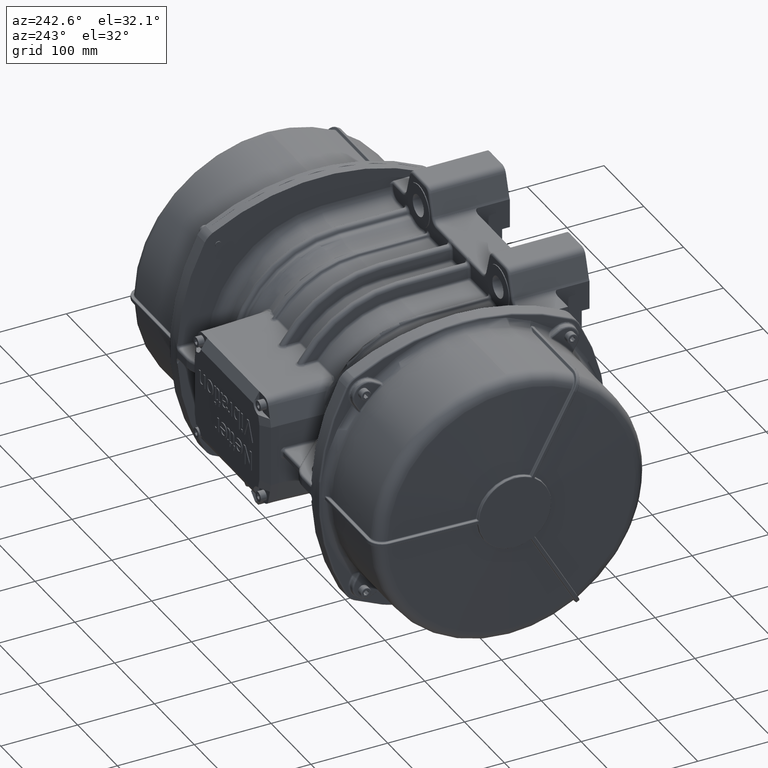
[diagram: clean part render]
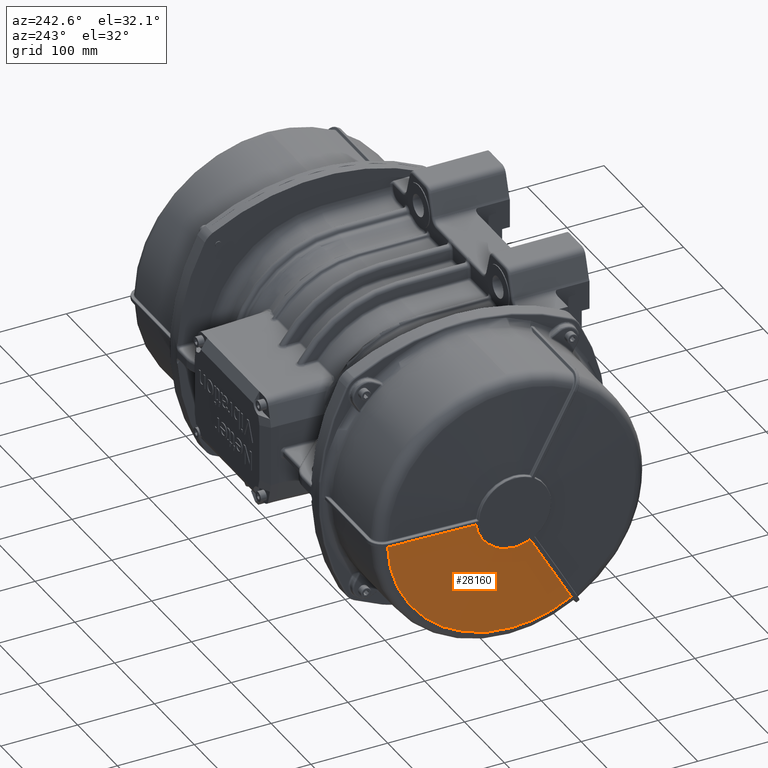
[diagram: same view with one face highlighted and labeled with its STEP entity id]
A machine part, auxiliary view. The second image highlights one B-rep face of the part: STEP entity #28160.
In plain terms, the highlighted conical surface has half-angle 88 deg.
Its self-contained STEP definition (entity closure, byte-faithful):
#3198 = CARTESIAN_POINT ( 'NONE',  ( -309.7182119034915200, 353.4855842026914800, -3.499243937520135200 ) ) ;
#3206 = CARTESIAN_POINT ( 'NONE',  ( -309.7182119034915200, 192.0000000000000000, -161.5234924505374700 ) ) ;
#3264 = DIRECTION ( 'NONE',  ( 0.0000000000000000000, 0.0000000000000000000, 1.000000000000000000 ) ) ;
#3265 = DIRECTION ( 'NONE',  ( 1.000000000000000000, -0.0000000000000000000, -0.0000000000000000000 ) ) ;
#3266 = CARTESIAN_POINT ( 'NONE',  ( -309.7182119034915200, 192.0000000000000000, 0.0000000000000000000 ) ) ;
#3267 = AXIS2_PLACEMENT_3D ( 'NONE', #3266, #3265, #3264 ) ;
#3276 = CIRCLE ( 'NONE', #3267, 161.5234924505374700 ) ;
#28102 = ORIENTED_EDGE ( 'NONE', *, *, #28167, .F. ) ;
#28132 = EDGE_CURVE ( 'NONE', #28158, #52540, #48922, .T. ) ;
#28155 = EDGE_LOOP ( 'NONE', ( #28197, #28200, #28161, #28102, #28156 ) ) ;
#28156 = ORIENTED_EDGE ( 'NONE', *, *, #53082, .F. ) ;
#28158 = VERTEX_POINT ( 'NONE', #49008 ) ;
#28160 = ADVANCED_FACE ( 'NONE', ( #49005 ), #49036, .T. ) ;
#28161 = ORIENTED_EDGE ( 'NONE', *, *, #28168, .F. ) ;
#28162 = VERTEX_POINT ( 'NONE', #49026 ) ;
#28163 = EDGE_CURVE ( 'NONE', #28196, #28158, #49023, .T. ) ;
#28167 = EDGE_CURVE ( 'NONE', #52584, #28162, #49071, .T. ) ;
#28168 = EDGE_CURVE ( 'NONE', #28162, #28196, #49027, .T. ) ;
#28196 = VERTEX_POINT ( 'NONE', #49088 ) ;
#28197 = ORIENTED_EDGE ( 'NONE', *, *, #28132, .F. ) ;
#28200 = ORIENTED_EDGE ( 'NONE', *, *, #28163, .F. ) ;
#48920 = AXIS2_PLACEMENT_3D ( 'NONE', #48932, #48965, #48964 ) ;
#48922 = CIRCLE ( 'NONE', #48920, 161.5234924505374700 ) ;
#48932 = CARTESIAN_POINT ( 'NONE',  ( -309.7182119034915200, 192.0000000000000000, 0.0000000000000000000 ) ) ;
#48964 = DIRECTION ( 'NONE',  ( 0.0000000000000000000, 2.749378453329652900E-015, 1.000000000000000000 ) ) ;
#48965 = DIRECTION ( 'NONE',  ( 1.000000000000000000, -0.0000000000000000000, -0.0000000000000000000 ) ) ;
#48999 = AXIS2_PLACEMENT_3D ( 'NONE', #49009, #49034, #49028 ) ;
#49005 = FACE_OUTER_BOUND ( 'NONE', #28155, .T. ) ;
#49008 = CARTESIAN_POINT ( 'NONE',  ( -309.7182119034915200, 114.2876420425866000, -141.6002402332625800 ) ) ;
#49009 = CARTESIAN_POINT ( 'NONE',  ( -309.2126811203114600, 192.0000000000000000, 0.0000000000000000000 ) ) ;
#49015 = CARTESIAN_POINT ( 'NONE',  ( -313.6198838042352000, 170.1933347462131700, -44.76535032845118400 ) ) ;
#49016 = CARTESIAN_POINT ( 'NONE',  ( -313.6430921182774800, 170.5264373719162400, -44.18833346615370800 ) ) ;
#49017 = CARTESIAN_POINT ( 'NONE',  ( -313.6662979477880000, 170.8595388175375000, -43.61131582270265000 ) ) ;
#49023 = B_SPLINE_CURVE_WITH_KNOTS ( 'NONE', 3,
 ( #49017, #49016, #49015, #49082, #49081, #49080, #49079, #49078, #49077, #49076, #49074, #49073, #49072 ),
 .UNSPECIFIED., .F., .F.,
 ( 4, 3, 3, 3, 4 ),
 ( 0.0000000000000000000, 0.002000000000017069700, 0.01000000000133866000, 0.04200000002243646500, 0.1132157065453791400 ),
 .UNSPECIFIED. ) ;
#49026 = CARTESIAN_POINT ( 'NONE',  ( -313.6662979477880000, 240.3387379861579800, -3.497481479619410000 ) ) ;
#49027 = CIRCLE ( 'NONE', #49033, 48.46510050329749900 ) ;
#49028 = DIRECTION ( 'NONE',  ( 0.0000000000000000000, 0.0000000000000000000, 1.000000000000000000 ) ) ;
#49033 = AXIS2_PLACEMENT_3D ( 'NONE', #49043, #49053, #49052 ) ;
#49034 = DIRECTION ( 'NONE',  ( 1.000000000000000000, 0.0000000000000000000, 0.0000000000000000000 ) ) ;
#49036 = CONICAL_SURFACE ( 'NONE', #48999, 176.0000000000000000, 1.535889741755017000 ) ;
#49043 = CARTESIAN_POINT ( 'NONE',  ( -313.6662979477880000, 192.0000000000000000, 0.0000000000000000000 ) ) ;
#49052 = DIRECTION ( 'NONE',  ( 0.0000000000000000000, 0.0000000000000000000, 1.000000000000000000 ) ) ;
#49053 = DIRECTION ( 'NONE',  ( -1.000000000000000000, 0.0000000000000000000, 0.0000000000000000000 ) ) ;
#49054 = CARTESIAN_POINT ( 'NONE',  ( -313.6662979477880000, 240.3387379861579800, -3.497481479619410000 ) ) ;
#49055 = CARTESIAN_POINT ( 'NONE',  ( -312.8399881760605600, 264.0629210253578100, -3.498710227593261600 ) ) ;
#49056 = CARTESIAN_POINT ( 'NONE',  ( -312.0116367433616300, 287.7870329671314400, -3.498776159145931400 ) ) ;
#49057 = CARTESIAN_POINT ( 'NONE',  ( -311.1835268382485000, 311.5111532705310000, -3.498978670279965000 ) ) ;
#49058 = CARTESIAN_POINT ( 'NONE',  ( -310.8114246958031700, 322.1713276483738500, -3.499069666446509500 ) ) ;
#49059 = CARTESIAN_POINT ( 'NONE',  ( -310.4392819075445100, 332.8315006076536500, -3.499137430787426800 ) ) ;
#49060 = CARTESIAN_POINT ( 'NONE',  ( -310.0671197093894900, 343.4916728892710000, -3.499194097297809900 ) ) ;
#49061 = CARTESIAN_POINT ( 'NONE',  ( -309.9740791598511000, 346.1567159596648400, -3.499208263925405400 ) ) ;
#49062 = CARTESIAN_POINT ( 'NONE',  ( -309.8810373071863200, 348.8217589845688700, -3.499221685536148200 ) ) ;
#49063 = CARTESIAN_POINT ( 'NONE',  ( -309.7879943378535500, 351.4868019704900300, -3.499234468702774800 ) ) ;
#49064 = CARTESIAN_POINT ( 'NONE',  ( -309.7647335955204000, 352.1530627169701700, -3.499237664494431900 ) ) ;
#49065 = CARTESIAN_POINT ( 'NONE',  ( -309.7414727832115800, 352.8193234610074600, -3.499240820278306100 ) ) ;
#49066 = CARTESIAN_POINT ( 'NONE',  ( -309.7182119034915200, 353.4855842026914800, -3.499243937520135200 ) ) ;
#49071 = B_SPLINE_CURVE_WITH_KNOTS ( 'NONE', 3,
 ( #49066, #49065, #49064, #49063, #49062, #49061, #49060, #49059, #49058, #49057, #49056, #49055, #49054 ),
 .UNSPECIFIED., .F., .F.,
 ( 4, 3, 3, 3, 4 ),
 ( 0.0000000000000000000, 0.001999999999999846500, 0.01000000000000201400, 0.04200000000026350000, 0.1132157065209005900 ),
 .UNSPECIFIED. ) ;
#49072 = CARTESIAN_POINT ( 'NONE',  ( -309.7182119034915200, 114.2876420425866000, -141.6002402332625800 ) ) ;
#49073 = CARTESIAN_POINT ( 'NONE',  ( -310.5464818950567900, 126.1496032736973100, -121.0544987069869300 ) ) ;
#49074 = CARTESIAN_POINT ( 'NONE',  ( -311.3747192834491700, 138.0115488898391000, -100.5087468475640000 ) ) ;
#49076 = CARTESIAN_POINT ( 'NONE',  ( -312.2025636765665100, 149.8733069182758000, -79.96287085194310900 ) ) ;
#49077 = CARTESIAN_POINT ( 'NONE',  ( -312.5745465141928900, 155.2032583527951900, -70.73080584321607500 ) ) ;
#49078 = CARTESIAN_POINT ( 'NONE',  ( -312.9464602639937400, 160.5331767493386800, -61.49871897115048800 ) ) ;
#49079 = CARTESIAN_POINT ( 'NONE',  ( -313.3180556802129800, 165.8629435416809800, -52.26653176350160400 ) ) ;
#49080 = CARTESIAN_POINT ( 'NONE',  ( -313.4109545342458300, 167.1953852394520100, -49.95848496213422200 ) ) ;
#49081 = CARTESIAN_POINT ( 'NONE',  ( -313.5038312261093600, 168.5278163863734200, -47.65043117737627700 ) ) ;
#49082 = CARTESIAN_POINT ( 'NONE',  ( -313.5966732886115000, 169.8602310742660100, -45.34236649820019900 ) ) ;
#49088 = CARTESIAN_POINT ( 'NONE',  ( -313.6662979477880000, 170.8595388175375000, -43.61131582270265000 ) ) ;
#52540 = VERTEX_POINT ( 'NONE', #3206 ) ;
#52584 = VERTEX_POINT ( 'NONE', #3198 ) ;
#53082 = EDGE_CURVE ( 'NONE', #52540, #52584, #3276, .T. ) ;